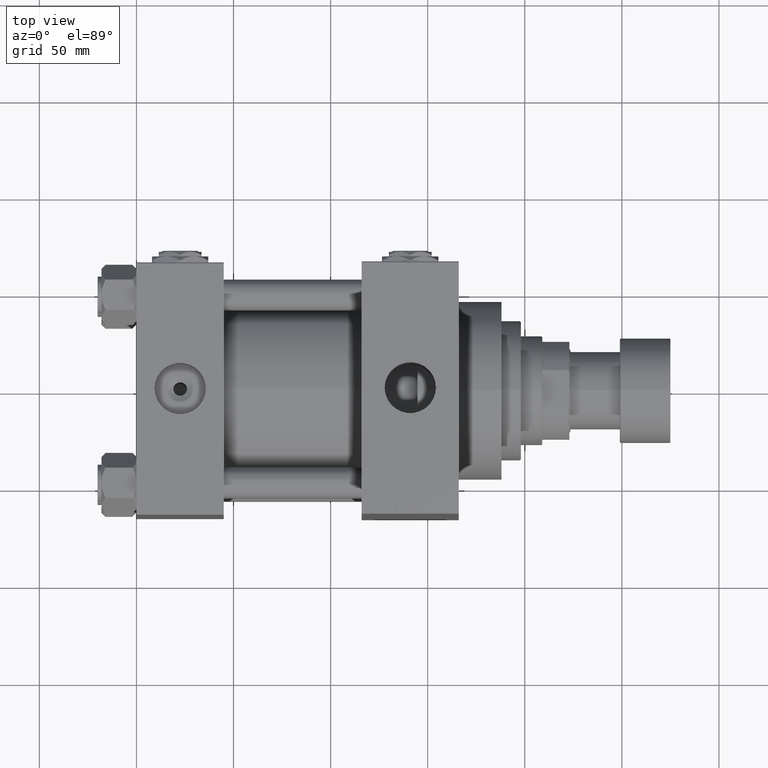
[diagram: clean part render]
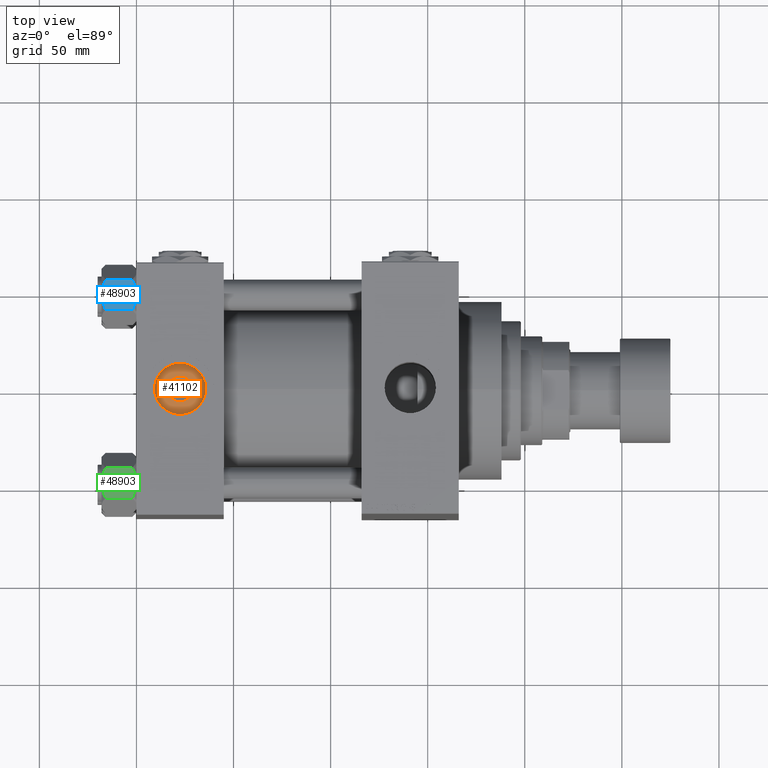
[diagram: same view with three faces highlighted in distinct colors, each labeled with its STEP entity id]
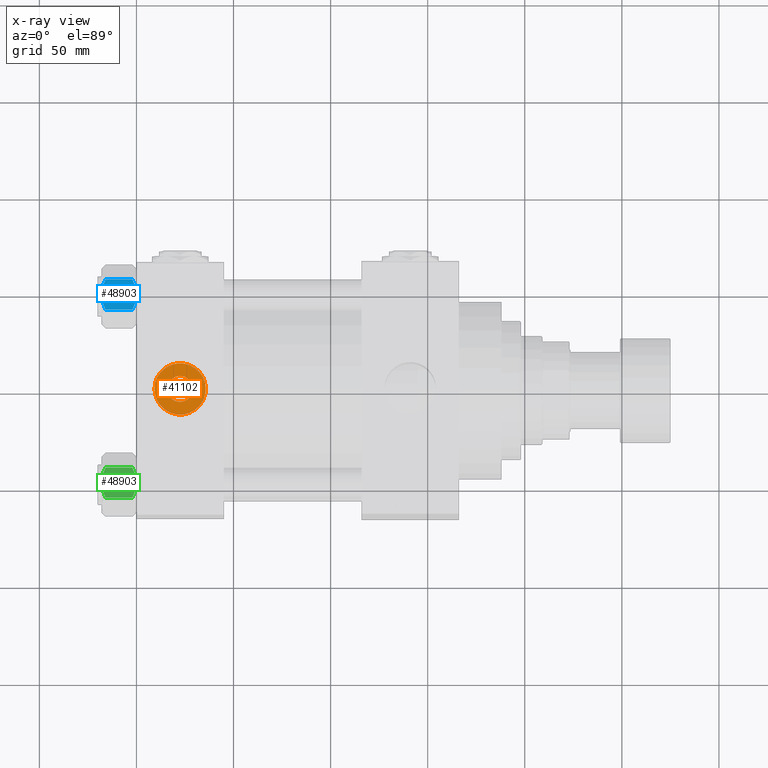
[diagram: x-ray of the same camera — body ghosted, the three highlighted faces saturated]
A machine part, top view with three faces highlighted in distinct colors.
The next image is the same camera in x-ray (body ghosted, the three faces saturated) — at least one of them is partly hidden behind the body in this view.
Their STEP definitions:

[orange] entity #41102 — the highlighted planar face has unit normal (0, 0, 1).
#857 = CARTESIAN_POINT ( 'NONE',  ( 22.50000000000000000, -8.673617379884035472E-15, 54.19999999999999574 ) ) ;
#2268 = FACE_OUTER_BOUND ( 'NONE', #41960, .T. ) ;
#2519 = FACE_BOUND ( 'NONE', #12535, .T. ) ;
#5836 = DIRECTION ( 'NONE',  ( 0.000000000000000000, 0.000000000000000000, 1.000000000000000000 ) ) ;
#7201 = CARTESIAN_POINT ( 'NONE',  ( 9.279999999999994031, -7.054634311411234321E-15, 54.19999999999999574 ) ) ;
#8596 = EDGE_CURVE ( 'NONE', #9109, #19088, #28637, .T. ) ;
#9109 = VERTEX_POINT ( 'NONE', #31674 ) ;
#9312 = VERTEX_POINT ( 'NONE', #7201 ) ;
#9402 = AXIS2_PLACEMENT_3D ( 'NONE', #28039, #30852, #38982 ) ;
#10377 = DIRECTION ( 'NONE',  ( -0.000000000000000000, -0.000000000000000000, -1.000000000000000000 ) ) ;
#11816 = ORIENTED_EDGE ( 'NONE', *, *, #8596, .T. ) ;
#12535 = EDGE_LOOP ( 'NONE', ( #16659, #11816 ) ) ;
#13646 = VERTEX_POINT ( 'NONE', #43040 ) ;
#15478 = ORIENTED_EDGE ( 'NONE', *, *, #19955, .T. ) ;
#15767 = ORIENTED_EDGE ( 'NONE', *, *, #19761, .T. ) ;
#16659 = ORIENTED_EDGE ( 'NONE', *, *, #24107, .T. ) ;
#17508 = PLANE ( 'NONE',  #48856 ) ;
#17761 = DIRECTION ( 'NONE',  ( 1.000000000000000000, 0.000000000000000000, -0.000000000000000000 ) ) ;
#19088 = VERTEX_POINT ( 'NONE', #22860 ) ;
#19761 = EDGE_CURVE ( 'NONE', #9312, #13646, #25459, .T. ) ;
#19955 = EDGE_CURVE ( 'NONE', #13646, #9312, #31209, .T. ) ;
#20826 = DIRECTION ( 'NONE',  ( 1.000000000000000000, 0.000000000000000000, 0.000000000000000000 ) ) ;
#21380 = AXIS2_PLACEMENT_3D ( 'NONE', #39869, #31979, #43930 ) ;
#21823 = CARTESIAN_POINT ( 'NONE',  ( 22.50000000000000000, -8.673617379884035472E-15, 54.19999999999999574 ) ) ;
#22860 = CARTESIAN_POINT ( 'NONE',  ( 29.14000000000008939, -8.673617379884035472E-15, 54.19999999999999574 ) ) ;
#24107 = EDGE_CURVE ( 'NONE', #19088, #9109, #32985, .T. ) ;
#24530 = DIRECTION ( 'NONE',  ( 0.000000000000000000, 0.000000000000000000, 1.000000000000000000 ) ) ;
#25459 = CIRCLE ( 'NONE', #21380, 13.22000000000000242 ) ;
#28039 = CARTESIAN_POINT ( 'NONE',  ( 22.50000000000000000, -8.673617379884035472E-15, 54.19999999999999574 ) ) ;
#28637 = CIRCLE ( 'NONE', #35947, 6.640000000000090274 ) ;
#29504 = CARTESIAN_POINT ( 'NONE',  ( 22.50000000000000000, -8.673617379884035472E-15, 54.19999999999999574 ) ) ;
#29561 = AXIS2_PLACEMENT_3D ( 'NONE', #857, #24530, #47930 ) ;
#30852 = DIRECTION ( 'NONE',  ( -0.000000000000000000, -0.000000000000000000, -1.000000000000000000 ) ) ;
#31209 = CIRCLE ( 'NONE', #29561, 13.22000000000000242 ) ;
#31674 = CARTESIAN_POINT ( 'NONE',  ( 15.85999999999990884, -7.860451905250181530E-15, 54.19999999999999574 ) ) ;
#31979 = DIRECTION ( 'NONE',  ( 0.000000000000000000, 0.000000000000000000, 1.000000000000000000 ) ) ;
#32985 = CIRCLE ( 'NONE', #9402, 6.640000000000090274 ) ;
#35947 = AXIS2_PLACEMENT_3D ( 'NONE', #21823, #10377, #20826 ) ;
#38982 = DIRECTION ( 'NONE',  ( 1.000000000000000000, 0.000000000000000000, 0.000000000000000000 ) ) ;
#39869 = CARTESIAN_POINT ( 'NONE',  ( 22.50000000000000000, -8.673617379884035472E-15, 54.19999999999999574 ) ) ;
#41102 = ADVANCED_FACE ( 'NONE', ( #2519, #2268 ), #17508, .T. ) ;
#41960 = EDGE_LOOP ( 'NONE', ( #15478, #15767 ) ) ;
#43040 = CARTESIAN_POINT ( 'NONE',  ( 35.71999999999999886, -8.673617379884035472E-15, 54.19999999999999574 ) ) ;
#43930 = DIRECTION ( 'NONE',  ( 1.000000000000000000, 0.000000000000000000, 0.000000000000000000 ) ) ;
#47930 = DIRECTION ( 'NONE',  ( 1.000000000000000000, 0.000000000000000000, 0.000000000000000000 ) ) ;
#48856 = AXIS2_PLACEMENT_3D ( 'NONE', #29504, #5836, #17761 ) ;

[blue] entity #48903 — the highlighted planar face has unit normal (0, -0, -1).
#62 = CARTESIAN_POINT ( 'NONE',  ( 5.189513245496335969, -13.52731680711293194, -17.04988915682674033 ) ) ;
#116 = DIRECTION ( 'NONE',  ( -1.000000000000000000, -2.221156819432531199E-16, 0.000000000000000000 ) ) ;
#1069 = CARTESIAN_POINT ( 'NONE',  ( -3.287826776903149728, -13.52731680711293727, -17.61954155462466076 ) ) ;
#2411 = VECTOR ( 'NONE', #18221, 1000.000000000000000 ) ;
#2746 = DIRECTION ( 'NONE',  ( -0.000000000000000000, -0.000000000000000000, 1.000000000000000000 ) ) ;
#3095 = CARTESIAN_POINT ( 'NONE',  ( -5.189513245496330640, -13.52731680711293905, -0.9501108431732574466 ) ) ;
#3659 = CARTESIAN_POINT ( 'NONE',  ( 3.004629197474319246E-15, -13.52731680711293727, 0.000000000000000000 ) ) ;
#3861 = VERTEX_POINT ( 'NONE', #45593 ) ;
#4991 = CARTESIAN_POINT ( 'NONE',  ( 7.622943475354652776, -13.52731680711293372, -2.000000000000000000 ) ) ;
#7330 = CARTESIAN_POINT ( 'NONE',  ( 7.810000000000002274, -13.52731680711293372, -18.00000000000000000 ) ) ;
#7710 = DIRECTION ( 'NONE',  ( -1.000000000000000000, -2.221156819432531199E-16, 0.000000000000000000 ) ) ;
#7857 = CARTESIAN_POINT ( 'NONE',  ( 3.004629197474319246E-15, -13.52731680711293727, 0.000000000000000000 ) ) ;
#8505 = ORIENTED_EDGE ( 'NONE', *, *, #48285, .F. ) ;
#8923 = ORIENTED_EDGE ( 'NONE', *, *, #25991, .F. ) ;
#9660 = CARTESIAN_POINT ( 'NONE',  ( 7.030203932307590442, -13.52731680711293727, -1.709001877891394017 ) ) ;
#9704 = CARTESIAN_POINT ( 'NONE',  ( -7.622943475354647447, -13.52731680711293727, -16.00000000000000000 ) ) ;
#9871 = CARTESIAN_POINT ( 'NONE',  ( 3.004629197474319246E-15, -13.52731680711293727, -18.00000000000000000 ) ) ;
#9889 = CARTESIAN_POINT ( 'NONE',  ( -7.809999999999999609, -13.52731680711293727, -18.00000000000000000 ) ) ;
#10052 = VECTOR ( 'NONE', #2746, 1000.000000000000000 ) ;
#10303 = EDGE_CURVE ( 'NONE', #49824, #38679, #39759, .T. ) ;
#11066 = PLANE ( 'NONE',  #16636 ) ;
#11102 = ORIENTED_EDGE ( 'NONE', *, *, #45976, .T. ) ;
#11766 = CARTESIAN_POINT ( 'NONE',  ( 1.335584685993418619, -13.52731680711293372, -18.00000000000000355 ) ) ;
#13267 = CARTESIAN_POINT ( 'NONE',  ( 3.004629197474319246E-15, -13.52731680711293727, -18.00000000000000000 ) ) ;
#13469 = CARTESIAN_POINT ( 'NONE',  ( 3.287826776903156833, -13.52731680711293194, -0.3804584453753362960 ) ) ;
#13695 = LINE ( 'NONE', #9889, #15916 ) ;
#14766 = VERTEX_POINT ( 'NONE', #3659 ) ;
#15575 = CARTESIAN_POINT ( 'NONE',  ( 4.553769687922309295, -13.52731680711293194, -17.26727080048548046 ) ) ;
#15916 = VECTOR ( 'NONE', #25415, 1000.000000000000000 ) ;
#16398 = CARTESIAN_POINT ( 'NONE',  ( 7.810000000000002274, -13.52731680711293372, -1.999999999999998224 ) ) ;
#16636 = AXIS2_PLACEMENT_3D ( 'NONE', #25846, #41375, #116 ) ;
#16644 = ORIENTED_EDGE ( 'NONE', *, *, #31858, .F. ) ;
#16908 = VERTEX_POINT ( 'NONE', #16398 ) ;
#17025 = CARTESIAN_POINT ( 'NONE',  ( 7.622943475354652776, -13.52731680711293372, -2.000000000000000000 ) ) ;
#17911 = ORIENTED_EDGE ( 'NONE', *, *, #50183, .F. ) ;
#18221 = DIRECTION ( 'NONE',  ( 1.000000000000000000, 2.221156819432531199E-16, -0.000000000000000000 ) ) ;
#18247 = CARTESIAN_POINT ( 'NONE',  ( 7.810000000000002274, -13.52731680711293372, -16.00000000000000000 ) ) ;
#18871 = LINE ( 'NONE', #31115, #25563 ) ;
#19962 = VECTOR ( 'NONE', #33109, 1000.000000000000000 ) ;
#19968 = VERTEX_POINT ( 'NONE', #47424 ) ;
#20397 = CARTESIAN_POINT ( 'NONE',  ( -1.663410456966171180, -13.52731680711293549, -17.90195050864300796 ) ) ;
#20979 = ORIENTED_EDGE ( 'NONE', *, *, #24860, .F. ) ;
#21155 = CARTESIAN_POINT ( 'NONE',  ( -4.557734399832409800, -13.52731680711293905, -17.26585298258849122 ) ) ;
#21711 = B_SPLINE_CURVE_WITH_KNOTS ( 'NONE', 3,
 ( #42581, #34946, #49693, #62, #15575, #22981, #11766, #46126 ),
 .UNSPECIFIED., .F., .F.,
 ( 4, 2, 2, 4 ),
 ( 0.01980594295952729095, 0.02179054093496183078, 0.02377513891039637062, 0.02774433486126545376 ),
 .UNSPECIFIED. ) ;
#22336 = LINE ( 'NONE', #7330, #10052 ) ;
#22432 = CARTESIAN_POINT ( 'NONE',  ( -7.622943475354647447, -13.52731680711293727, -2.000000000000000000 ) ) ;
#22981 = CARTESIAN_POINT ( 'NONE',  ( 2.638177715023113379, -13.52731680711293549, -17.79984593233011481 ) ) ;
#23479 = ORIENTED_EDGE ( 'NONE', *, *, #39743, .F. ) ;
#24860 = EDGE_CURVE ( 'NONE', #37232, #32527, #37421, .T. ) ;
#25229 = CARTESIAN_POINT ( 'NONE',  ( -0.3330234424833808937, -13.52731680711293372, -18.00000000000000711 ) ) ;
#25415 = DIRECTION ( 'NONE',  ( -0.000000000000000000, -0.000000000000000000, 1.000000000000000000 ) ) ;
#25438 = CARTESIAN_POINT ( 'NONE',  ( 0.3330234424833860007, -13.52731680711293727, 1.736982230502816853E-15 ) ) ;
#25563 = VECTOR ( 'NONE', #26535, 1000.000000000000000 ) ;
#25846 = CARTESIAN_POINT ( 'NONE',  ( 7.810000000000002274, -13.52731680711293372, -18.00000000000000000 ) ) ;
#25991 = EDGE_CURVE ( 'NONE', #32527, #19968, #13695, .T. ) ;
#26535 = DIRECTION ( 'NONE',  ( 1.000000000000000000, 2.221156819432531199E-16, -0.000000000000000000 ) ) ;
#28125 = CARTESIAN_POINT ( 'NONE',  ( 7.622943475354652776, -13.52731680711293372, -16.00000000000000000 ) ) ;
#28663 = ORIENTED_EDGE ( 'NONE', *, *, #36228, .F. ) ;
#29003 = B_SPLINE_CURVE_WITH_KNOTS ( 'NONE', 3,
 ( #22432, #33645, #37966, #3095, #31030, #46529, #42727, #7857 ),
 .UNSPECIFIED., .F., .F.,
 ( 4, 2, 2, 4 ),
 ( 0.01980594295952729095, 0.02179054093496183425, 0.02377513891039637756, 0.02774433486126546416 ),
 .UNSPECIFIED. ) ;
#29020 = CARTESIAN_POINT ( 'NONE',  ( 2.644243758052992277, -13.52731680711293372, -0.2408281198023969893 ) ) ;
#29758 = CARTESIAN_POINT ( 'NONE',  ( 6.422751913021828685, -13.52731680711293549, -1.436509110925896948 ) ) ;
#29987 = B_SPLINE_CURVE_WITH_KNOTS ( 'NONE', 3,
 ( #13267, #25229, #39761, #35936, #20397, #48134, #1069, #21155, #43572, #43821, #47383, #9704 ),
 .UNSPECIFIED., .F., .F.,
 ( 4, 2, 2, 2, 2, 4 ),
 ( 0.02774433486126545376, 0.02873404020403549225, 0.02972374554680553074, 0.03170315623234560426, 0.03368256691788568125, 0.03566197760342575823 ),
 .UNSPECIFIED. ) ;
#30450 = ORIENTED_EDGE ( 'NONE', *, *, #10303, .F. ) ;
#30725 = CARTESIAN_POINT ( 'NONE',  ( 7.810000000000002274, -13.52731680711293372, -1.999999999999998224 ) ) ;
#31030 = CARTESIAN_POINT ( 'NONE',  ( -4.553769687922305742, -13.52731680711294082, -0.7327291995145158721 ) ) ;
#31115 = CARTESIAN_POINT ( 'NONE',  ( 7.810000000000002274, -13.52731680711293372, -1.999999999999998224 ) ) ;
#31161 = CARTESIAN_POINT ( 'NONE',  ( -7.809999999999999609, -13.52731680711293727, -16.00000000000000000 ) ) ;
#31858 = EDGE_CURVE ( 'NONE', #3861, #14766, #29003, .T. ) ;
#32527 = VERTEX_POINT ( 'NONE', #31161 ) ;
#32587 = CARTESIAN_POINT ( 'NONE',  ( 3.004629197474319246E-15, -13.52731680711293727, 0.000000000000000000 ) ) ;
#32651 = EDGE_LOOP ( 'NONE', ( #30450, #11102, #8505, #44521, #16644, #28663, #8923, #20979, #17911, #23479 ) ) ;
#32828 = CARTESIAN_POINT ( 'NONE',  ( 0.6693083573771232420, -13.52731680711293372, -0.01249333081107902900 ) ) ;
#33109 = DIRECTION ( 'NONE',  ( -1.000000000000000000, -2.221156819432531199E-16, 0.000000000000000000 ) ) ;
#33465 = VERTEX_POINT ( 'NONE', #4991 ) ;
#33645 = CARTESIAN_POINT ( 'NONE',  ( -7.030888348548060662, -13.52731680711294082, -1.709337883550297699 ) ) ;
#34162 = CARTESIAN_POINT ( 'NONE',  ( -7.622943475354647447, -13.52731680711293727, -16.00000000000000000 ) ) ;
#34946 = CARTESIAN_POINT ( 'NONE',  ( 7.030888348548065103, -13.52731680711293194, -16.29066211644969897 ) ) ;
#35936 = CARTESIAN_POINT ( 'NONE',  ( -1.333889873825130579, -13.52731680711293549, -17.93843358996560866 ) ) ;
#36228 = EDGE_CURVE ( 'NONE', #19968, #3861, #42416, .T. ) ;
#37232 = VERTEX_POINT ( 'NONE', #34162 ) ;
#37389 = VERTEX_POINT ( 'NONE', #9871 ) ;
#37391 = CARTESIAN_POINT ( 'NONE',  ( 1.333889873825135686, -13.52731680711293549, -0.06156641003439144999 ) ) ;
#37421 = LINE ( 'NONE', #49107, #19962 ) ;
#37966 = CARTESIAN_POINT ( 'NONE',  ( -6.427364677720470709, -13.52731680711293727, -1.438506937155139109 ) ) ;
#38679 = VERTEX_POINT ( 'NONE', #28125 ) ;
#39743 = EDGE_CURVE ( 'NONE', #38679, #37389, #21711, .T. ) ;
#39759 = LINE ( 'NONE', #43074, #49808 ) ;
#39761 = CARTESIAN_POINT ( 'NONE',  ( -0.6693083573771178019, -13.52731680711293727, -17.98750666918892449 ) ) ;
#41375 = DIRECTION ( 'NONE',  ( -2.221156819432531199E-16, 1.000000000000000000, 0.000000000000000000 ) ) ;
#42416 = LINE ( 'NONE', #30725, #2411 ) ;
#42581 = CARTESIAN_POINT ( 'NONE',  ( 7.622943475354652776, -13.52731680711293372, -16.00000000000000000 ) ) ;
#42727 = CARTESIAN_POINT ( 'NONE',  ( -1.335584685993413956, -13.52731680711294082, 1.666960840196463265E-15 ) ) ;
#43074 = CARTESIAN_POINT ( 'NONE',  ( 7.810000000000002274, -13.52731680711293372, -16.00000000000000000 ) ) ;
#43195 = EDGE_CURVE ( 'NONE', #14766, #33465, #50059, .T. ) ;
#43572 = CARTESIAN_POINT ( 'NONE',  ( -5.184073258379402027, -13.52731680711293905, -17.05185620934992130 ) ) ;
#43821 = CARTESIAN_POINT ( 'NONE',  ( -6.422751913021825132, -13.52731680711293905, -16.56349088907410305 ) ) ;
#44517 = CARTESIAN_POINT ( 'NONE',  ( 5.184073258379408244, -13.52731680711293372, -0.9481437906500832513 ) ) ;
#44521 = ORIENTED_EDGE ( 'NONE', *, *, #43195, .F. ) ;
#45177 = FACE_OUTER_BOUND ( 'NONE', #32651, .T. ) ;
#45593 = CARTESIAN_POINT ( 'NONE',  ( -7.622943475354647447, -13.52731680711293727, -2.000000000000000000 ) ) ;
#45976 = EDGE_CURVE ( 'NONE', #49824, #16908, #22336, .T. ) ;
#46126 = CARTESIAN_POINT ( 'NONE',  ( 3.004629197474319246E-15, -13.52731680711293727, -18.00000000000000000 ) ) ;
#46529 = CARTESIAN_POINT ( 'NONE',  ( -2.638177715023105385, -13.52731680711294082, -0.2001540676698838062 ) ) ;
#47383 = CARTESIAN_POINT ( 'NONE',  ( -7.030203932307581560, -13.52731680711293727, -16.29099812210860065 ) ) ;
#47424 = CARTESIAN_POINT ( 'NONE',  ( -7.809999999999999609, -13.52731680711293727, -1.999999999999998224 ) ) ;
#48134 = CARTESIAN_POINT ( 'NONE',  ( -2.644243758052987836, -13.52731680711293549, -17.75917188019760218 ) ) ;
#48285 = EDGE_CURVE ( 'NONE', #33465, #16908, #18871, .T. ) ;
#48334 = CARTESIAN_POINT ( 'NONE',  ( 1.663410456966175843, -13.52731680711293372, -0.09804949135698878826 ) ) ;
#48832 = CARTESIAN_POINT ( 'NONE',  ( 4.557734399832416905, -13.52731680711293016, -0.7341470174115138914 ) ) ;
#48903 = ADVANCED_FACE ( 'NONE', ( #45177 ), #11066, .F. ) ;
#49107 = CARTESIAN_POINT ( 'NONE',  ( 7.810000000000002274, -13.52731680711293372, -16.00000000000000000 ) ) ;
#49693 = CARTESIAN_POINT ( 'NONE',  ( 6.427364677720476926, -13.52731680711293549, -16.56149306284486755 ) ) ;
#49808 = VECTOR ( 'NONE', #7710, 1000.000000000000000 ) ;
#49824 = VERTEX_POINT ( 'NONE', #18247 ) ;
#50059 = B_SPLINE_CURVE_WITH_KNOTS ( 'NONE', 3,
 ( #32587, #25438, #32828, #37391, #48334, #29020, #13469, #48832, #44517, #29758, #9660, #17025 ),
 .UNSPECIFIED., .F., .F.,
 ( 4, 2, 2, 2, 2, 4 ),
 ( 0.02774433486126546416, 0.02873404020403550266, 0.02972374554680554115, 0.03170315623234561814, 0.03368256691788569512, 0.03566197760342577211 ),
 .UNSPECIFIED. ) ;
#50183 = EDGE_CURVE ( 'NONE', #37389, #37232, #29987, .T. ) ;

[green] entity #48903 — the highlighted planar face has unit normal (0, -0, -1).
#62 = CARTESIAN_POINT ( 'NONE',  ( 5.189513245496335969, -13.52731680711293194, -17.04988915682674033 ) ) ;
#116 = DIRECTION ( 'NONE',  ( -1.000000000000000000, -2.221156819432531199E-16, 0.000000000000000000 ) ) ;
#1069 = CARTESIAN_POINT ( 'NONE',  ( -3.287826776903149728, -13.52731680711293727, -17.61954155462466076 ) ) ;
#2411 = VECTOR ( 'NONE', #18221, 1000.000000000000000 ) ;
#2746 = DIRECTION ( 'NONE',  ( -0.000000000000000000, -0.000000000000000000, 1.000000000000000000 ) ) ;
#3095 = CARTESIAN_POINT ( 'NONE',  ( -5.189513245496330640, -13.52731680711293905, -0.9501108431732574466 ) ) ;
#3659 = CARTESIAN_POINT ( 'NONE',  ( 3.004629197474319246E-15, -13.52731680711293727, 0.000000000000000000 ) ) ;
#3861 = VERTEX_POINT ( 'NONE', #45593 ) ;
#4991 = CARTESIAN_POINT ( 'NONE',  ( 7.622943475354652776, -13.52731680711293372, -2.000000000000000000 ) ) ;
#7330 = CARTESIAN_POINT ( 'NONE',  ( 7.810000000000002274, -13.52731680711293372, -18.00000000000000000 ) ) ;
#7710 = DIRECTION ( 'NONE',  ( -1.000000000000000000, -2.221156819432531199E-16, 0.000000000000000000 ) ) ;
#7857 = CARTESIAN_POINT ( 'NONE',  ( 3.004629197474319246E-15, -13.52731680711293727, 0.000000000000000000 ) ) ;
#8505 = ORIENTED_EDGE ( 'NONE', *, *, #48285, .F. ) ;
#8923 = ORIENTED_EDGE ( 'NONE', *, *, #25991, .F. ) ;
#9660 = CARTESIAN_POINT ( 'NONE',  ( 7.030203932307590442, -13.52731680711293727, -1.709001877891394017 ) ) ;
#9704 = CARTESIAN_POINT ( 'NONE',  ( -7.622943475354647447, -13.52731680711293727, -16.00000000000000000 ) ) ;
#9871 = CARTESIAN_POINT ( 'NONE',  ( 3.004629197474319246E-15, -13.52731680711293727, -18.00000000000000000 ) ) ;
#9889 = CARTESIAN_POINT ( 'NONE',  ( -7.809999999999999609, -13.52731680711293727, -18.00000000000000000 ) ) ;
#10052 = VECTOR ( 'NONE', #2746, 1000.000000000000000 ) ;
#10303 = EDGE_CURVE ( 'NONE', #49824, #38679, #39759, .T. ) ;
#11066 = PLANE ( 'NONE',  #16636 ) ;
#11102 = ORIENTED_EDGE ( 'NONE', *, *, #45976, .T. ) ;
#11766 = CARTESIAN_POINT ( 'NONE',  ( 1.335584685993418619, -13.52731680711293372, -18.00000000000000355 ) ) ;
#13267 = CARTESIAN_POINT ( 'NONE',  ( 3.004629197474319246E-15, -13.52731680711293727, -18.00000000000000000 ) ) ;
#13469 = CARTESIAN_POINT ( 'NONE',  ( 3.287826776903156833, -13.52731680711293194, -0.3804584453753362960 ) ) ;
#13695 = LINE ( 'NONE', #9889, #15916 ) ;
#14766 = VERTEX_POINT ( 'NONE', #3659 ) ;
#15575 = CARTESIAN_POINT ( 'NONE',  ( 4.553769687922309295, -13.52731680711293194, -17.26727080048548046 ) ) ;
#15916 = VECTOR ( 'NONE', #25415, 1000.000000000000000 ) ;
#16398 = CARTESIAN_POINT ( 'NONE',  ( 7.810000000000002274, -13.52731680711293372, -1.999999999999998224 ) ) ;
#16636 = AXIS2_PLACEMENT_3D ( 'NONE', #25846, #41375, #116 ) ;
#16644 = ORIENTED_EDGE ( 'NONE', *, *, #31858, .F. ) ;
#16908 = VERTEX_POINT ( 'NONE', #16398 ) ;
#17025 = CARTESIAN_POINT ( 'NONE',  ( 7.622943475354652776, -13.52731680711293372, -2.000000000000000000 ) ) ;
#17911 = ORIENTED_EDGE ( 'NONE', *, *, #50183, .F. ) ;
#18221 = DIRECTION ( 'NONE',  ( 1.000000000000000000, 2.221156819432531199E-16, -0.000000000000000000 ) ) ;
#18247 = CARTESIAN_POINT ( 'NONE',  ( 7.810000000000002274, -13.52731680711293372, -16.00000000000000000 ) ) ;
#18871 = LINE ( 'NONE', #31115, #25563 ) ;
#19962 = VECTOR ( 'NONE', #33109, 1000.000000000000000 ) ;
#19968 = VERTEX_POINT ( 'NONE', #47424 ) ;
#20397 = CARTESIAN_POINT ( 'NONE',  ( -1.663410456966171180, -13.52731680711293549, -17.90195050864300796 ) ) ;
#20979 = ORIENTED_EDGE ( 'NONE', *, *, #24860, .F. ) ;
#21155 = CARTESIAN_POINT ( 'NONE',  ( -4.557734399832409800, -13.52731680711293905, -17.26585298258849122 ) ) ;
#21711 = B_SPLINE_CURVE_WITH_KNOTS ( 'NONE', 3,
 ( #42581, #34946, #49693, #62, #15575, #22981, #11766, #46126 ),
 .UNSPECIFIED., .F., .F.,
 ( 4, 2, 2, 4 ),
 ( 0.01980594295952729095, 0.02179054093496183078, 0.02377513891039637062, 0.02774433486126545376 ),
 .UNSPECIFIED. ) ;
#22336 = LINE ( 'NONE', #7330, #10052 ) ;
#22432 = CARTESIAN_POINT ( 'NONE',  ( -7.622943475354647447, -13.52731680711293727, -2.000000000000000000 ) ) ;
#22981 = CARTESIAN_POINT ( 'NONE',  ( 2.638177715023113379, -13.52731680711293549, -17.79984593233011481 ) ) ;
#23479 = ORIENTED_EDGE ( 'NONE', *, *, #39743, .F. ) ;
#24860 = EDGE_CURVE ( 'NONE', #37232, #32527, #37421, .T. ) ;
#25229 = CARTESIAN_POINT ( 'NONE',  ( -0.3330234424833808937, -13.52731680711293372, -18.00000000000000711 ) ) ;
#25415 = DIRECTION ( 'NONE',  ( -0.000000000000000000, -0.000000000000000000, 1.000000000000000000 ) ) ;
#25438 = CARTESIAN_POINT ( 'NONE',  ( 0.3330234424833860007, -13.52731680711293727, 1.736982230502816853E-15 ) ) ;
#25563 = VECTOR ( 'NONE', #26535, 1000.000000000000000 ) ;
#25846 = CARTESIAN_POINT ( 'NONE',  ( 7.810000000000002274, -13.52731680711293372, -18.00000000000000000 ) ) ;
#25991 = EDGE_CURVE ( 'NONE', #32527, #19968, #13695, .T. ) ;
#26535 = DIRECTION ( 'NONE',  ( 1.000000000000000000, 2.221156819432531199E-16, -0.000000000000000000 ) ) ;
#28125 = CARTESIAN_POINT ( 'NONE',  ( 7.622943475354652776, -13.52731680711293372, -16.00000000000000000 ) ) ;
#28663 = ORIENTED_EDGE ( 'NONE', *, *, #36228, .F. ) ;
#29003 = B_SPLINE_CURVE_WITH_KNOTS ( 'NONE', 3,
 ( #22432, #33645, #37966, #3095, #31030, #46529, #42727, #7857 ),
 .UNSPECIFIED., .F., .F.,
 ( 4, 2, 2, 4 ),
 ( 0.01980594295952729095, 0.02179054093496183425, 0.02377513891039637756, 0.02774433486126546416 ),
 .UNSPECIFIED. ) ;
#29020 = CARTESIAN_POINT ( 'NONE',  ( 2.644243758052992277, -13.52731680711293372, -0.2408281198023969893 ) ) ;
#29758 = CARTESIAN_POINT ( 'NONE',  ( 6.422751913021828685, -13.52731680711293549, -1.436509110925896948 ) ) ;
#29987 = B_SPLINE_CURVE_WITH_KNOTS ( 'NONE', 3,
 ( #13267, #25229, #39761, #35936, #20397, #48134, #1069, #21155, #43572, #43821, #47383, #9704 ),
 .UNSPECIFIED., .F., .F.,
 ( 4, 2, 2, 2, 2, 4 ),
 ( 0.02774433486126545376, 0.02873404020403549225, 0.02972374554680553074, 0.03170315623234560426, 0.03368256691788568125, 0.03566197760342575823 ),
 .UNSPECIFIED. ) ;
#30450 = ORIENTED_EDGE ( 'NONE', *, *, #10303, .F. ) ;
#30725 = CARTESIAN_POINT ( 'NONE',  ( 7.810000000000002274, -13.52731680711293372, -1.999999999999998224 ) ) ;
#31030 = CARTESIAN_POINT ( 'NONE',  ( -4.553769687922305742, -13.52731680711294082, -0.7327291995145158721 ) ) ;
#31115 = CARTESIAN_POINT ( 'NONE',  ( 7.810000000000002274, -13.52731680711293372, -1.999999999999998224 ) ) ;
#31161 = CARTESIAN_POINT ( 'NONE',  ( -7.809999999999999609, -13.52731680711293727, -16.00000000000000000 ) ) ;
#31858 = EDGE_CURVE ( 'NONE', #3861, #14766, #29003, .T. ) ;
#32527 = VERTEX_POINT ( 'NONE', #31161 ) ;
#32587 = CARTESIAN_POINT ( 'NONE',  ( 3.004629197474319246E-15, -13.52731680711293727, 0.000000000000000000 ) ) ;
#32651 = EDGE_LOOP ( 'NONE', ( #30450, #11102, #8505, #44521, #16644, #28663, #8923, #20979, #17911, #23479 ) ) ;
#32828 = CARTESIAN_POINT ( 'NONE',  ( 0.6693083573771232420, -13.52731680711293372, -0.01249333081107902900 ) ) ;
#33109 = DIRECTION ( 'NONE',  ( -1.000000000000000000, -2.221156819432531199E-16, 0.000000000000000000 ) ) ;
#33465 = VERTEX_POINT ( 'NONE', #4991 ) ;
#33645 = CARTESIAN_POINT ( 'NONE',  ( -7.030888348548060662, -13.52731680711294082, -1.709337883550297699 ) ) ;
#34162 = CARTESIAN_POINT ( 'NONE',  ( -7.622943475354647447, -13.52731680711293727, -16.00000000000000000 ) ) ;
#34946 = CARTESIAN_POINT ( 'NONE',  ( 7.030888348548065103, -13.52731680711293194, -16.29066211644969897 ) ) ;
#35936 = CARTESIAN_POINT ( 'NONE',  ( -1.333889873825130579, -13.52731680711293549, -17.93843358996560866 ) ) ;
#36228 = EDGE_CURVE ( 'NONE', #19968, #3861, #42416, .T. ) ;
#37232 = VERTEX_POINT ( 'NONE', #34162 ) ;
#37389 = VERTEX_POINT ( 'NONE', #9871 ) ;
#37391 = CARTESIAN_POINT ( 'NONE',  ( 1.333889873825135686, -13.52731680711293549, -0.06156641003439144999 ) ) ;
#37421 = LINE ( 'NONE', #49107, #19962 ) ;
#37966 = CARTESIAN_POINT ( 'NONE',  ( -6.427364677720470709, -13.52731680711293727, -1.438506937155139109 ) ) ;
#38679 = VERTEX_POINT ( 'NONE', #28125 ) ;
#39743 = EDGE_CURVE ( 'NONE', #38679, #37389, #21711, .T. ) ;
#39759 = LINE ( 'NONE', #43074, #49808 ) ;
#39761 = CARTESIAN_POINT ( 'NONE',  ( -0.6693083573771178019, -13.52731680711293727, -17.98750666918892449 ) ) ;
#41375 = DIRECTION ( 'NONE',  ( -2.221156819432531199E-16, 1.000000000000000000, 0.000000000000000000 ) ) ;
#42416 = LINE ( 'NONE', #30725, #2411 ) ;
#42581 = CARTESIAN_POINT ( 'NONE',  ( 7.622943475354652776, -13.52731680711293372, -16.00000000000000000 ) ) ;
#42727 = CARTESIAN_POINT ( 'NONE',  ( -1.335584685993413956, -13.52731680711294082, 1.666960840196463265E-15 ) ) ;
#43074 = CARTESIAN_POINT ( 'NONE',  ( 7.810000000000002274, -13.52731680711293372, -16.00000000000000000 ) ) ;
#43195 = EDGE_CURVE ( 'NONE', #14766, #33465, #50059, .T. ) ;
#43572 = CARTESIAN_POINT ( 'NONE',  ( -5.184073258379402027, -13.52731680711293905, -17.05185620934992130 ) ) ;
#43821 = CARTESIAN_POINT ( 'NONE',  ( -6.422751913021825132, -13.52731680711293905, -16.56349088907410305 ) ) ;
#44517 = CARTESIAN_POINT ( 'NONE',  ( 5.184073258379408244, -13.52731680711293372, -0.9481437906500832513 ) ) ;
#44521 = ORIENTED_EDGE ( 'NONE', *, *, #43195, .F. ) ;
#45177 = FACE_OUTER_BOUND ( 'NONE', #32651, .T. ) ;
#45593 = CARTESIAN_POINT ( 'NONE',  ( -7.622943475354647447, -13.52731680711293727, -2.000000000000000000 ) ) ;
#45976 = EDGE_CURVE ( 'NONE', #49824, #16908, #22336, .T. ) ;
#46126 = CARTESIAN_POINT ( 'NONE',  ( 3.004629197474319246E-15, -13.52731680711293727, -18.00000000000000000 ) ) ;
#46529 = CARTESIAN_POINT ( 'NONE',  ( -2.638177715023105385, -13.52731680711294082, -0.2001540676698838062 ) ) ;
#47383 = CARTESIAN_POINT ( 'NONE',  ( -7.030203932307581560, -13.52731680711293727, -16.29099812210860065 ) ) ;
#47424 = CARTESIAN_POINT ( 'NONE',  ( -7.809999999999999609, -13.52731680711293727, -1.999999999999998224 ) ) ;
#48134 = CARTESIAN_POINT ( 'NONE',  ( -2.644243758052987836, -13.52731680711293549, -17.75917188019760218 ) ) ;
#48285 = EDGE_CURVE ( 'NONE', #33465, #16908, #18871, .T. ) ;
#48334 = CARTESIAN_POINT ( 'NONE',  ( 1.663410456966175843, -13.52731680711293372, -0.09804949135698878826 ) ) ;
#48832 = CARTESIAN_POINT ( 'NONE',  ( 4.557734399832416905, -13.52731680711293016, -0.7341470174115138914 ) ) ;
#48903 = ADVANCED_FACE ( 'NONE', ( #45177 ), #11066, .F. ) ;
#49107 = CARTESIAN_POINT ( 'NONE',  ( 7.810000000000002274, -13.52731680711293372, -16.00000000000000000 ) ) ;
#49693 = CARTESIAN_POINT ( 'NONE',  ( 6.427364677720476926, -13.52731680711293549, -16.56149306284486755 ) ) ;
#49808 = VECTOR ( 'NONE', #7710, 1000.000000000000000 ) ;
#49824 = VERTEX_POINT ( 'NONE', #18247 ) ;
#50059 = B_SPLINE_CURVE_WITH_KNOTS ( 'NONE', 3,
 ( #32587, #25438, #32828, #37391, #48334, #29020, #13469, #48832, #44517, #29758, #9660, #17025 ),
 .UNSPECIFIED., .F., .F.,
 ( 4, 2, 2, 2, 2, 4 ),
 ( 0.02774433486126546416, 0.02873404020403550266, 0.02972374554680554115, 0.03170315623234561814, 0.03368256691788569512, 0.03566197760342577211 ),
 .UNSPECIFIED. ) ;
#50183 = EDGE_CURVE ( 'NONE', #37389, #37232, #29987, .T. ) ;